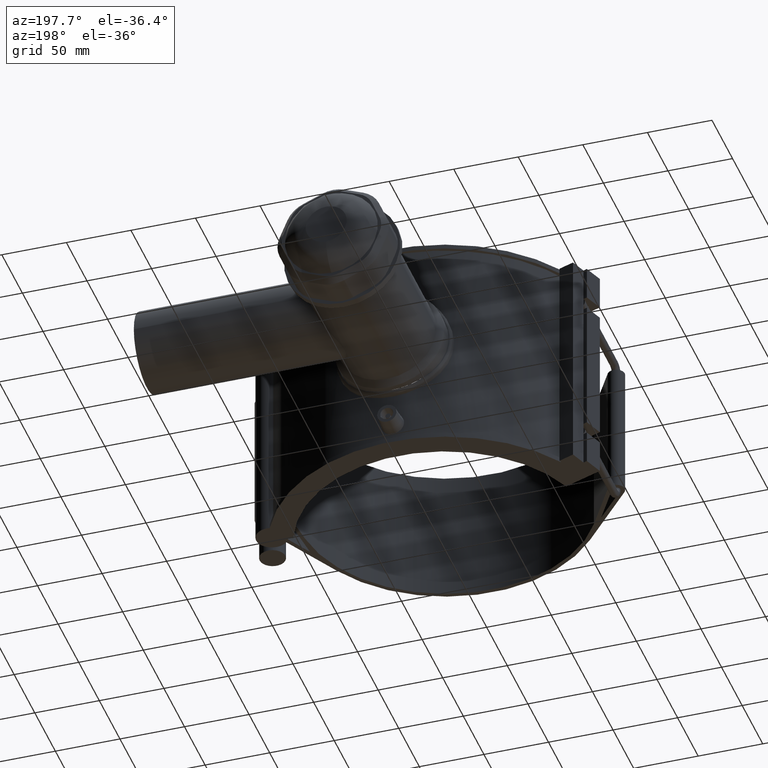
[diagram: clean part render]
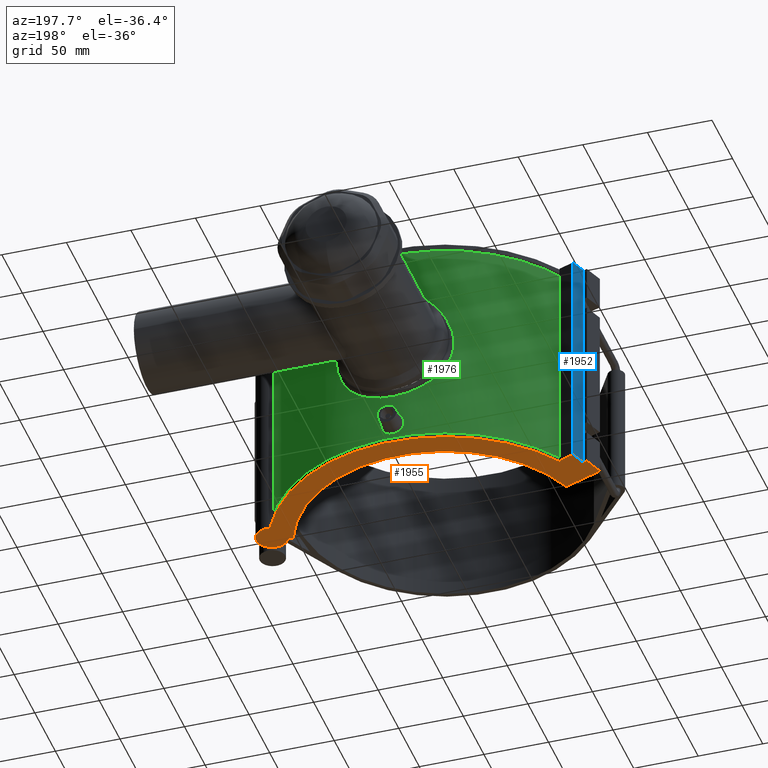
[diagram: same view with three faces highlighted in distinct colors, each labeled with its STEP entity id]
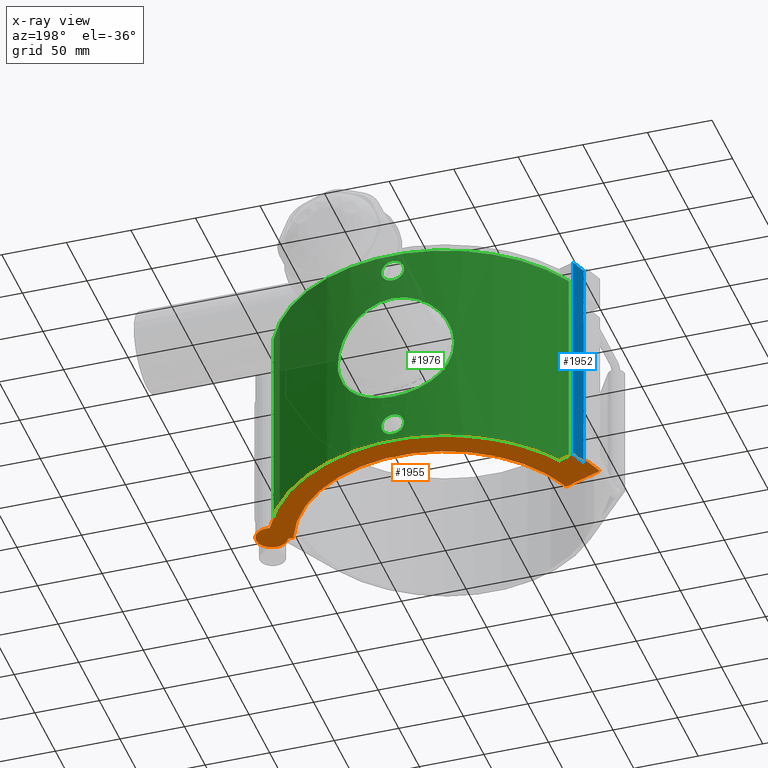
[diagram: x-ray of the same camera — body ghosted, the three highlighted faces saturated]
A machine part, auxiliary view with three faces highlighted in distinct colors.
The next image is the same camera in x-ray (body ghosted, the three faces saturated) — at least one of them is partly hidden behind the body in this view.
Their STEP definitions:

[orange] entity #1955 — the highlighted planar face has unit normal (0, 0, 1).
#137=LINE('',#3486,#298);
#153=LINE('',#3529,#314);
#157=LINE('',#3535,#318);
#168=LINE('',#3558,#329);
#177=LINE('',#3575,#338);
#179=LINE('',#3578,#340);
#181=LINE('',#3593,#342);
#298=VECTOR('',#2558,31.4999999999999);
#314=VECTOR('',#2602,3.15000000000004);
#318=VECTOR('',#2610,15.75);
#329=VECTOR('',#2627,2.57206903182394);
#338=VECTOR('',#2642,12.6);
#340=VECTOR('',#2646,12.6);
#342=VECTOR('',#2662,3.63461538461539);
#534=FACE_OUTER_BOUND('',#676,.T.);
#676=EDGE_LOOP('',(#1661,#1662,#1663,#1664,#1665,#1666,#1667,#1668,#1669,
#1670));
#796=CIRCLE('',#2149,130.815);
#797=CIRCLE('',#2150,12.1153846153846);
#798=CIRCLE('',#2151,112.5);
#941=VERTEX_POINT('',#3483);
#942=VERTEX_POINT('',#3485);
#954=VERTEX_POINT('',#3526);
#955=VERTEX_POINT('',#3528);
#963=VERTEX_POINT('',#3555);
#964=VERTEX_POINT('',#3557);
#969=VERTEX_POINT('',#3573);
#973=VERTEX_POINT('',#3588);
#974=VERTEX_POINT('',#3590);
#975=VERTEX_POINT('',#3592);
#1167=EDGE_CURVE('',#942,#941,#137,.T.);
#1189=EDGE_CURVE('',#955,#954,#153,.T.);
#1193=EDGE_CURVE('',#941,#955,#157,.T.);
#1204=EDGE_CURVE('',#964,#963,#168,.T.);
#1213=EDGE_CURVE('',#954,#969,#177,.T.);
#1215=EDGE_CURVE('',#969,#964,#179,.T.);
#1220=EDGE_CURVE('',#973,#963,#796,.T.);
#1221=EDGE_CURVE('',#973,#974,#797,.T.);
#1222=EDGE_CURVE('',#974,#975,#181,.T.);
#1223=EDGE_CURVE('',#975,#942,#798,.T.);
#1661=ORIENTED_EDGE('',*,*,#1167,.T.);
#1662=ORIENTED_EDGE('',*,*,#1193,.T.);
#1663=ORIENTED_EDGE('',*,*,#1189,.T.);
#1664=ORIENTED_EDGE('',*,*,#1213,.T.);
#1665=ORIENTED_EDGE('',*,*,#1215,.T.);
#1666=ORIENTED_EDGE('',*,*,#1204,.T.);
#1667=ORIENTED_EDGE('',*,*,#1220,.F.);
#1668=ORIENTED_EDGE('',*,*,#1221,.T.);
#1669=ORIENTED_EDGE('',*,*,#1222,.T.);
#1670=ORIENTED_EDGE('',*,*,#1223,.T.);
#1855=PLANE('',#2148);
#1955=ADVANCED_FACE('',(#534),#1855,.F.);
#2148=AXIS2_PLACEMENT_3D('',#3587,#2656,#2657);
#2149=AXIS2_PLACEMENT_3D('',#3589,#2658,#2659);
#2150=AXIS2_PLACEMENT_3D('',#3591,#2660,#2661);
#2151=AXIS2_PLACEMENT_3D('',#3594,#2663,#2664);
#2558=DIRECTION('',(-0.939692620785908,0.342020143325669,0.));
#2602=DIRECTION('',(0.939692620785908,-0.342020143325669,0.));
#2610=DIRECTION('',(0.342020143325668,0.939692620785909,0.));
#2627=DIRECTION('',(-0.342020143325672,-0.939692620785907,0.));
#2642=DIRECTION('',(0.342020143325669,0.939692620785908,0.));
#2646=DIRECTION('',(0.939692620785909,-0.342020143325668,0.));
#2656=DIRECTION('center_axis',(0.,0.,1.));
#2657=DIRECTION('ref_axis',(1.,0.,0.));
#2658=DIRECTION('center_axis',(0.,0.,1.));
#2659=DIRECTION('ref_axis',(0.976614427290077,0.21499828001376,0.));
#2660=DIRECTION('center_axis',(0.,0.,-1.));
#2661=DIRECTION('ref_axis',(-1.,0.,0.));
#2662=DIRECTION('',(-0.939692620785908,-0.342020143325669,0.));
#2663=DIRECTION('center_axis',(0.,0.,1.));
#2664=DIRECTION('ref_axis',(-1.,0.,0.));
#3483=CARTESIAN_POINT('',(-135.315737393171,49.2509006388962,-88.));
#3485=CARTESIAN_POINT('',(-105.715419838415,38.4772661241378,-88.));
#3486=CARTESIAN_POINT('',(-122.402768893554,44.5509644690188,-88.));
#3526=CARTESIAN_POINT('',(-126.968888380316,62.9736959647984,-88.));
#3528=CARTESIAN_POINT('',(-129.928920135791,64.0510594162743,-88.));
#3529=CARTESIAN_POINT('',(-129.928920135791,64.0510594162743,-88.));
#3535=CARTESIAN_POINT('',(-135.315737393171,49.2509006388962,-88.));
#3555=CARTESIAN_POINT('',(-111.699006971418,68.0874148914405,-88.));
#3557=CARTESIAN_POINT('',(-110.81930755251,70.5043691807975,-88.));
#3558=CARTESIAN_POINT('',(-110.81930755251,70.5043691807975,-88.));
#3573=CARTESIAN_POINT('',(-122.659434574412,74.8138229867009,-88.));
#3575=CARTESIAN_POINT('',(-126.968888380316,62.9736959647984,-88.));
#3578=CARTESIAN_POINT('',(-122.659434574412,74.8138229867009,-88.));
#3587=CARTESIAN_POINT('Origin',(-138.02557242982,1.02542712232171E-16,-88.));
#3588=CARTESIAN_POINT('',(118.326455748415,55.7800510489045,-88.));
#3589=CARTESIAN_POINT('Origin',(0.,0.,-88.));
#3590=CARTESIAN_POINT('',(109.130841094733,39.7203777989176,-88.));
#3591=CARTESIAN_POINT('Origin',(120.515578615793,43.864083381517,-88.));
#3592=CARTESIAN_POINT('',(105.715419838415,38.4772661241377,-88.));
#3593=CARTESIAN_POINT('',(-60.9398237995001,-22.1802819444451,-88.));
#3594=CARTESIAN_POINT('Origin',(0.,0.,-88.));

[blue] entity #1952 — the highlighted planar face has unit normal (-0.9397, 0.342, 0).
#116=LINE('',#3421,#277);
#117=LINE('',#3425,#278);
#127=LINE('',#3465,#288);
#128=LINE('',#3467,#289);
#130=LINE('',#3471,#291);
#148=LINE('',#3514,#309);
#152=LINE('',#3527,#313);
#155=LINE('',#3532,#316);
#174=LINE('',#3569,#335);
#175=LINE('',#3572,#336);
#176=LINE('',#3574,#337);
#177=LINE('',#3575,#338);
#277=VECTOR('',#2503,5.10345887572063);
#278=VECTOR('',#2506,5.10345887572067);
#288=VECTOR('',#2538,3.93327056213968);
#289=VECTOR('',#2541,0.413270562139685);
#291=VECTOR('',#2545,0.413270562139658);
#309=VECTOR('',#2585,3.93327056213968);
#313=VECTOR('',#2601,26.075);
#316=VECTOR('',#2606,104.95);
#335=VECTOR('',#2637,26.075);
#336=VECTOR('',#2640,12.6);
#337=VECTOR('',#2641,176.);
#338=VECTOR('',#2642,12.6);
#531=FACE_OUTER_BOUND('',#673,.T.);
#673=EDGE_LOOP('',(#1635,#1636,#1637,#1638,#1639,#1640,#1641,#1642,#1643,
#1644,#1645,#1646));
#920=VERTEX_POINT('',#3415);
#921=VERTEX_POINT('',#3417);
#922=VERTEX_POINT('',#3423);
#923=VERTEX_POINT('',#3424);
#931=VERTEX_POINT('',#3451);
#936=VERTEX_POINT('',#3463);
#937=VERTEX_POINT('',#3469);
#951=VERTEX_POINT('',#3510);
#954=VERTEX_POINT('',#3526);
#967=VERTEX_POINT('',#3567);
#968=VERTEX_POINT('',#3571);
#969=VERTEX_POINT('',#3573);
#1138=EDGE_CURVE('',#921,#920,#116,.T.);
#1139=EDGE_CURVE('',#922,#923,#117,.T.);
#1157=EDGE_CURVE('',#920,#936,#127,.T.);
#1158=EDGE_CURVE('',#931,#921,#128,.T.);
#1160=EDGE_CURVE('',#923,#937,#130,.T.);
#1182=EDGE_CURVE('',#951,#922,#148,.T.);
#1188=EDGE_CURVE('',#954,#931,#152,.T.);
#1191=EDGE_CURVE('',#936,#951,#155,.T.);
#1210=EDGE_CURVE('',#937,#967,#174,.T.);
#1211=EDGE_CURVE('',#967,#968,#175,.T.);
#1212=EDGE_CURVE('',#969,#968,#176,.T.);
#1213=EDGE_CURVE('',#954,#969,#177,.T.);
#1635=ORIENTED_EDGE('',*,*,#1211,.T.);
#1636=ORIENTED_EDGE('',*,*,#1212,.F.);
#1637=ORIENTED_EDGE('',*,*,#1213,.F.);
#1638=ORIENTED_EDGE('',*,*,#1188,.T.);
#1639=ORIENTED_EDGE('',*,*,#1158,.T.);
#1640=ORIENTED_EDGE('',*,*,#1138,.T.);
#1641=ORIENTED_EDGE('',*,*,#1157,.T.);
#1642=ORIENTED_EDGE('',*,*,#1191,.T.);
#1643=ORIENTED_EDGE('',*,*,#1182,.T.);
#1644=ORIENTED_EDGE('',*,*,#1139,.T.);
#1645=ORIENTED_EDGE('',*,*,#1160,.T.);
#1646=ORIENTED_EDGE('',*,*,#1210,.T.);
#1852=PLANE('',#2142);
#1952=ADVANCED_FACE('',(#531),#1852,.T.);
#2142=AXIS2_PLACEMENT_3D('',#3570,#2638,#2639);
#2503=DIRECTION('',(0.,0.,1.));
#2506=DIRECTION('',(0.,0.,1.));
#2538=DIRECTION('',(0.,0.,1.));
#2541=DIRECTION('',(0.,0.,1.));
#2545=DIRECTION('',(0.,0.,1.));
#2585=DIRECTION('',(0.,0.,1.));
#2601=DIRECTION('',(0.,0.,1.));
#2606=DIRECTION('',(0.,0.,1.));
#2637=DIRECTION('',(0.,0.,1.));
#2638=DIRECTION('center_axis',(-0.939692620785908,0.342020143325669,0.));
#2639=DIRECTION('ref_axis',(-0.342020143325669,-0.939692620785908,0.));
#2640=DIRECTION('',(0.342020143325669,0.939692620785908,0.));
#2641=DIRECTION('',(0.,0.,1.));
#2642=DIRECTION('',(0.342020143325669,0.939692620785908,0.));
#3415=CARTESIAN_POINT('',(-126.968888380316,62.9736959647984,-56.4082705621397));
#3417=CARTESIAN_POINT('',(-126.968888380316,62.9736959647984,-61.5117294378603));
#3421=CARTESIAN_POINT('',(-126.968888380316,62.9736959647984,-88.));
#3423=CARTESIAN_POINT('',(-126.968888380316,62.9736959647985,56.4082705621397));
#3424=CARTESIAN_POINT('',(-126.968888380316,62.9736959647985,61.5117294378603));
#3425=CARTESIAN_POINT('',(-126.968888380316,62.9736959647984,-88.));
#3451=CARTESIAN_POINT('',(-126.968888380316,62.9736959647984,-61.925));
#3463=CARTESIAN_POINT('',(-126.968888380316,62.9736959647984,-52.475));
#3465=CARTESIAN_POINT('',(-126.968888380316,62.9736959647984,-88.));
#3467=CARTESIAN_POINT('',(-126.968888380316,62.9736959647984,-88.));
#3469=CARTESIAN_POINT('',(-126.968888380316,62.9736959647985,61.925));
#3471=CARTESIAN_POINT('',(-126.968888380316,62.9736959647984,-88.));
#3510=CARTESIAN_POINT('',(-126.968888380316,62.9736959647985,52.475));
#3514=CARTESIAN_POINT('',(-126.968888380316,62.9736959647984,-88.));
#3526=CARTESIAN_POINT('',(-126.968888380316,62.9736959647984,-88.));
#3527=CARTESIAN_POINT('',(-126.968888380316,62.9736959647984,-88.));
#3532=CARTESIAN_POINT('',(-126.968888380316,62.9736959647984,-88.));
#3567=CARTESIAN_POINT('',(-126.968888380316,62.9736959647984,88.));
#3569=CARTESIAN_POINT('',(-126.968888380316,62.9736959647984,-88.));
#3570=CARTESIAN_POINT('Origin',(-122.659434574412,74.8138229867009,-88.));
#3571=CARTESIAN_POINT('',(-122.659434574412,74.8138229867009,88.));
#3572=CARTESIAN_POINT('',(-125.296094408077,67.5696596309246,88.));
#3573=CARTESIAN_POINT('',(-122.659434574412,74.8138229867009,-88.));
#3574=CARTESIAN_POINT('',(-122.659434574412,74.8138229867009,-88.));
#3575=CARTESIAN_POINT('',(-126.968888380316,62.9736959647984,-88.));

[green] entity #1976 — the highlighted cylindrical surface (partial cylindrical patch) has radius 128.25 mm, axis along (0, 0, 1).
#159=LINE('',#3542,#320);
#197=LINE('',#3635,#358);
#320=VECTOR('',#2616,168.96);
#358=VECTOR('',#2720,168.96);
#385=FACE_BOUND('',#701,.T.);
#386=FACE_BOUND('',#702,.T.);
#387=FACE_BOUND('',#703,.T.);
#410=B_SPLINE_CURVE_WITH_KNOTS('',3,(#3648,#3649,#3650,#3651,#3652,#3653,
#3654,#3655,#3656,#3657,#3658,#3659,#3660,#3661,#3662,#3663,#3664,#3665,
#3666,#3667,#3668,#3669,#3670,#3671,#3672,#3673,#3674,#3675,#3676,#3677,
#3678,#3679,#3680,#3681,#3682,#3683,#3684,#3685,#3686,#3687,#3688,#3689,
#3690,#3691,#3692,#3693,#3694,#3695,#3696,#3697,#3698,#3699,#3700,#3701,
#3702,#3703,#3704,#3705,#3706,#3707,#3708,#3709,#3710,#3711,#3712,#3713),
 .UNSPECIFIED.,.T.,.F.,(4,2,2,2,2,2,2,2,2,2,2,2,2,2,2,2,2,2,2,2,2,2,2,2,
2,2,2,2,2,2,2,2,4),(0.,0.855728946250435,1.71145789250087,2.56718683875131,
3.42291578500174,4.27815145924942,5.1333871334971,5.98862280774479,6.84385848199247,
7.69909415624015,8.55432983048783,9.40956550473551,10.2648011789832,11.1205301252336,
11.9762590714841,12.8319880177345,13.6877169639849,14.5434459102354,15.3991748564858,
16.2549038027362,17.1106327489867,17.9658684232344,18.821104097482,19.6763397717297,
20.5315754459774,21.3868111202251,22.2420467944728,23.0972824687205,23.9525181429681,
24.8082470892186,25.663976035469,26.5197049817194,27.3754339279699),
 .UNSPECIFIED.);
#411=B_SPLINE_CURVE_WITH_KNOTS('',3,(#3715,#3716,#3717,#3718,#3719,#3720,
#3721,#3722,#3723,#3724,#3725,#3726,#3727,#3728,#3729,#3730,#3731,#3732,
#3733,#3734,#3735,#3736,#3737,#3738,#3739,#3740,#3741,#3742,#3743,#3744,
#3745,#3746,#3747,#3748),.UNSPECIFIED.,.T.,.F.,(4,2,2,2,2,2,2,2,2,2,2,2,
2,2,2,2,4),(0.,0.330196286126767,0.660392572253533,0.990362194504793,1.32033181675605,
1.65030143900731,1.98027106125857,2.31046734738534,2.64066363351211,2.97085991963887,
3.30105620576564,3.6310258280169,3.96099545026816,4.29096507251942,4.62093469477068,
4.95113098089744,5.28132726702421),.UNSPECIFIED.);
#412=B_SPLINE_CURVE_WITH_KNOTS('',3,(#3750,#3751,#3752,#3753,#3754,#3755,
#3756,#3757,#3758,#3759,#3760,#3761,#3762,#3763,#3764,#3765,#3766,#3767,
#3768,#3769,#3770,#3771,#3772,#3773,#3774,#3775,#3776,#3777,#3778,#3779,
#3780,#3781,#3782,#3783),.UNSPECIFIED.,.T.,.F.,(4,2,2,2,2,2,2,2,2,2,2,2,
2,2,2,2,4),(0.,0.330196286126767,0.660392572253533,0.990362194504793,1.32033181675605,
1.65030143900731,1.98027106125857,2.31046734738534,2.64066363351211,2.97085991963887,
3.30105620576564,3.6310258280169,3.96099545026816,4.29096507251942,4.62093469477068,
4.95113098089744,5.28132726702421),.UNSPECIFIED.);
#444=CYLINDRICAL_SURFACE('',#2178,128.25);
#555=FACE_OUTER_BOUND('',#700,.T.);
#700=EDGE_LOOP('',(#1754,#1755,#1756,#1757));
#701=EDGE_LOOP('',(#1758));
#702=EDGE_LOOP('',(#1759));
#703=EDGE_LOOP('',(#1760));
#804=CIRCLE('',#2177,128.25);
#805=CIRCLE('',#2179,128.25);
#956=VERTEX_POINT('',#3538);
#958=VERTEX_POINT('',#3541);
#979=VERTEX_POINT('',#3632);
#980=VERTEX_POINT('',#3634);
#982=VERTEX_POINT('',#3647);
#983=VERTEX_POINT('',#3714);
#984=VERTEX_POINT('',#3749);
#1195=EDGE_CURVE('',#958,#956,#159,.T.);
#1242=EDGE_CURVE('',#980,#979,#197,.T.);
#1247=EDGE_CURVE('',#956,#980,#804,.T.);
#1248=EDGE_CURVE('',#979,#958,#805,.T.);
#1249=EDGE_CURVE('',#982,#982,#410,.T.);
#1250=EDGE_CURVE('',#983,#983,#411,.T.);
#1251=EDGE_CURVE('',#984,#984,#412,.T.);
#1754=ORIENTED_EDGE('',*,*,#1195,.T.);
#1755=ORIENTED_EDGE('',*,*,#1247,.T.);
#1756=ORIENTED_EDGE('',*,*,#1242,.T.);
#1757=ORIENTED_EDGE('',*,*,#1248,.T.);
#1758=ORIENTED_EDGE('',*,*,#1249,.T.);
#1759=ORIENTED_EDGE('',*,*,#1250,.T.);
#1760=ORIENTED_EDGE('',*,*,#1251,.T.);
#1976=ADVANCED_FACE('',(#555,#385,#386,#387),#444,.T.);
#2177=AXIS2_PLACEMENT_3D('',#3644,#2733,#2734);
#2178=AXIS2_PLACEMENT_3D('',#3645,#2735,#2736);
#2179=AXIS2_PLACEMENT_3D('',#3646,#2737,#2738);
#2616=DIRECTION('',(0.,0.,1.));
#2720=DIRECTION('',(0.,0.,-1.));
#2733=DIRECTION('center_axis',(0.,0.,-1.));
#2734=DIRECTION('ref_axis',(1.,0.,0.));
#2735=DIRECTION('center_axis',(0.,0.,1.));
#2736=DIRECTION('ref_axis',(1.,0.,0.));
#2737=DIRECTION('center_axis',(0.,0.,1.));
#2738=DIRECTION('ref_axis',(1.,0.,0.));
#3538=CARTESIAN_POINT('',(-114.216527132582,58.3322160540136,84.48));
#3541=CARTESIAN_POINT('',(-114.216527132582,58.3322160540136,-84.48));
#3542=CARTESIAN_POINT('',(-114.216527132582,58.3322160540136,0.));
#3632=CARTESIAN_POINT('',(115.838757280186,55.0403925474944,-84.48));
#3634=CARTESIAN_POINT('',(115.838757280186,55.0403925474944,84.48));
#3635=CARTESIAN_POINT('',(115.838757280186,55.0403925474943,0.));
#3644=CARTESIAN_POINT('Origin',(0.,0.,84.48));
#3645=CARTESIAN_POINT('Origin',(0.,0.,0.));
#3646=CARTESIAN_POINT('Origin',(0.,0.,-84.48));
#3647=CARTESIAN_POINT('',(45.,120.096055305743,0.));
#3648=CARTESIAN_POINT('Ctrl Pts',(45.,120.096055305743,1.11022302462516E-15));
#3649=CARTESIAN_POINT('Ctrl Pts',(45.,120.096055305743,2.85242982083479));
#3650=CARTESIAN_POINT('Ctrl Pts',(44.724428450353,120.200514769227,5.79357665491238));
#3651=CARTESIAN_POINT('Ctrl Pts',(43.5733880070998,120.622543945769,11.6275487061537));
#3652=CARTESIAN_POINT('Ctrl Pts',(42.6982619080095,120.939665787067,14.520473941499));
#3653=CARTESIAN_POINT('Ctrl Pts',(40.3950033797142,121.728336355425,20.0556632606961));
#3654=CARTESIAN_POINT('Ctrl Pts',(38.9650444193638,122.199645347404,22.7027991987814));
#3655=CARTESIAN_POINT('Ctrl Pts',(35.6699383820364,123.201799925917,27.5925220770062));
#3656=CARTESIAN_POINT('Ctrl Pts',(33.8044936485425,123.731629249055,29.8351166582468));
#3657=CARTESIAN_POINT('Ctrl Pts',(29.8362607018989,124.747956204361,33.8033496048904));
#3658=CARTESIAN_POINT('Ctrl Pts',(27.5942096504032,125.27106308028,35.6686546168075));
#3659=CARTESIAN_POINT('Ctrl Pts',(22.7041865402505,126.248958668781,38.9642559565315));
#3660=CARTESIAN_POINT('Ctrl Pts',(20.0562058908857,126.702869747262,40.3947998925188));
#3661=CARTESIAN_POINT('Ctrl Pts',(14.5193267893956,127.456101252927,42.6987169416773));
#3662=CARTESIAN_POINT('Ctrl Pts',(11.6255815568741,127.755459103685,43.5739199645984));
#3663=CARTESIAN_POINT('Ctrl Pts',(5.79135139277384,128.152533047064,44.7247235506191));
#3664=CARTESIAN_POINT('Ctrl Pts',(2.85078558082561,128.25,45.));
#3665=CARTESIAN_POINT('Ctrl Pts',(-2.8507855808256,128.25,45.));
#3666=CARTESIAN_POINT('Ctrl Pts',(-5.79135139277383,128.152533047064,44.7247235506191));
#3667=CARTESIAN_POINT('Ctrl Pts',(-11.6255815568741,127.755459103685,43.5739199645984));
#3668=CARTESIAN_POINT('Ctrl Pts',(-14.5193267893956,127.456101252927,42.6987169416773));
#3669=CARTESIAN_POINT('Ctrl Pts',(-20.0562058908857,126.702869747262,40.3947998925188));
#3670=CARTESIAN_POINT('Ctrl Pts',(-22.7041865402505,126.248958668781,38.9642559565315));
#3671=CARTESIAN_POINT('Ctrl Pts',(-27.5942096504032,125.27106308028,35.6686546168076));
#3672=CARTESIAN_POINT('Ctrl Pts',(-29.8362607018989,124.747956204361,33.8033496048904));
#3673=CARTESIAN_POINT('Ctrl Pts',(-33.8044936485425,123.731629249055,29.8351166582468));
#3674=CARTESIAN_POINT('Ctrl Pts',(-35.6699383820364,123.201799925917,27.5925220770062));
#3675=CARTESIAN_POINT('Ctrl Pts',(-38.9650444193638,122.199645347404,22.7027991987814));
#3676=CARTESIAN_POINT('Ctrl Pts',(-40.3950033797142,121.728336355425,20.0556632606961));
#3677=CARTESIAN_POINT('Ctrl Pts',(-42.6982619080095,120.939665787067,14.520473941499));
#3678=CARTESIAN_POINT('Ctrl Pts',(-43.5733880070998,120.622543945769,11.6275487061537));
#3679=CARTESIAN_POINT('Ctrl Pts',(-44.724428450353,120.200514769227,5.79357665491237));
#3680=CARTESIAN_POINT('Ctrl Pts',(-45.,120.096055305743,2.85242982083478));
#3681=CARTESIAN_POINT('Ctrl Pts',(-45.,120.096055305743,-2.85242982083478));
#3682=CARTESIAN_POINT('Ctrl Pts',(-44.724428450353,120.200514769227,-5.79357665491238));
#3683=CARTESIAN_POINT('Ctrl Pts',(-43.5733880070998,120.622543945769,-11.6275487061537));
#3684=CARTESIAN_POINT('Ctrl Pts',(-42.6982619080095,120.939665787067,-14.520473941499));
#3685=CARTESIAN_POINT('Ctrl Pts',(-40.3950033797142,121.728336355425,-20.0556632606961));
#3686=CARTESIAN_POINT('Ctrl Pts',(-38.9650444193638,122.199645347404,-22.7027991987815));
#3687=CARTESIAN_POINT('Ctrl Pts',(-35.6699383820364,123.201799925917,-27.5925220770062));
#3688=CARTESIAN_POINT('Ctrl Pts',(-33.8044936485425,123.731629249055,-29.8351166582468));
#3689=CARTESIAN_POINT('Ctrl Pts',(-29.8362607018989,124.747956204361,-33.8033496048904));
#3690=CARTESIAN_POINT('Ctrl Pts',(-27.5942096504032,125.27106308028,-35.6686546168076));
#3691=CARTESIAN_POINT('Ctrl Pts',(-22.7041865402505,126.248958668781,-38.9642559565316));
#3692=CARTESIAN_POINT('Ctrl Pts',(-20.0562058908857,126.702869747262,-40.3947998925188));
#3693=CARTESIAN_POINT('Ctrl Pts',(-14.5193267893956,127.456101252927,-42.6987169416773));
#3694=CARTESIAN_POINT('Ctrl Pts',(-11.6255815568741,127.755459103685,-43.5739199645984));
#3695=CARTESIAN_POINT('Ctrl Pts',(-5.79135139277384,128.152533047064,-44.7247235506191));
#3696=CARTESIAN_POINT('Ctrl Pts',(-2.85078558082561,128.25,-45.));
#3697=CARTESIAN_POINT('Ctrl Pts',(2.85078558082559,128.25,-45.));
#3698=CARTESIAN_POINT('Ctrl Pts',(5.79135139277381,128.152533047064,-44.7247235506191));
#3699=CARTESIAN_POINT('Ctrl Pts',(11.6255815568741,127.755459103685,-43.5739199645984));
#3700=CARTESIAN_POINT('Ctrl Pts',(14.5193267893956,127.456101252927,-42.6987169416773));
#3701=CARTESIAN_POINT('Ctrl Pts',(20.0562058908857,126.702869747262,-40.3947998925188));
#3702=CARTESIAN_POINT('Ctrl Pts',(22.7041865402505,126.248958668781,-38.9642559565315));
#3703=CARTESIAN_POINT('Ctrl Pts',(27.5942096504032,125.27106308028,-35.6686546168075));
#3704=CARTESIAN_POINT('Ctrl Pts',(29.8362607018989,124.747956204361,-33.8033496048904));
#3705=CARTESIAN_POINT('Ctrl Pts',(33.8044936485425,123.731629249055,-29.8351166582468));
#3706=CARTESIAN_POINT('Ctrl Pts',(35.6699383820364,123.201799925917,-27.5925220770062));
#3707=CARTESIAN_POINT('Ctrl Pts',(38.9650444193638,122.199645347404,-22.7027991987814));
#3708=CARTESIAN_POINT('Ctrl Pts',(40.3950033797142,121.728336355425,-20.0556632606961));
#3709=CARTESIAN_POINT('Ctrl Pts',(42.6982619080095,120.939665787067,-14.520473941499));
#3710=CARTESIAN_POINT('Ctrl Pts',(43.5733880070998,120.622543945769,-11.6275487061537));
#3711=CARTESIAN_POINT('Ctrl Pts',(44.724428450353,120.200514769227,-5.79357665491239));
#3712=CARTESIAN_POINT('Ctrl Pts',(45.,120.096055305743,-2.85242982083479));
#3713=CARTESIAN_POINT('Ctrl Pts',(45.,120.096055305743,1.11022302462516E-15));
#3714=CARTESIAN_POINT('',(8.77299610992734,127.949587882319,-70.4));
#3715=CARTESIAN_POINT('Ctrl Pts',(8.77299610992734,127.949587882319,-70.4));
#3716=CARTESIAN_POINT('Ctrl Pts',(8.77299610992734,127.949587882319,-69.2993457129108));
#3717=CARTESIAN_POINT('Ctrl Pts',(8.55187424562502,127.96534787823,-68.1259527139558));
#3718=CARTESIAN_POINT('Ctrl Pts',(7.6540934223627,128.022184263365,-65.9690307106768));
#3719=CARTESIAN_POINT('Ctrl Pts',(6.97747344776285,128.062432873762,-64.9854637470189));
#3720=CARTESIAN_POINT('Ctrl Pts',(5.41861622576006,128.137853935393,-63.4341064530373));
#3721=CARTESIAN_POINT('Ctrl Pts',(4.43260654007097,128.177927088609,-62.7625109612075));
#3722=CARTESIAN_POINT('Ctrl Pts',(2.27325837545014,128.234399790843,-61.8721006131769));
#3723=CARTESIAN_POINT('Ctrl Pts',(1.09989874083753,128.25,-61.6532865447556));
#3724=CARTESIAN_POINT('Ctrl Pts',(-1.09989874083753,128.25,-61.6532865447556));
#3725=CARTESIAN_POINT('Ctrl Pts',(-2.27325837545014,128.234399790843,-61.8721006131769));
#3726=CARTESIAN_POINT('Ctrl Pts',(-4.43260654007097,128.177927088609,-62.7625109612075));
#3727=CARTESIAN_POINT('Ctrl Pts',(-5.41861622576006,128.137853935393,-63.4341064530373));
#3728=CARTESIAN_POINT('Ctrl Pts',(-6.97747344776285,128.062432873762,-64.9854637470189));
#3729=CARTESIAN_POINT('Ctrl Pts',(-7.6540934223627,128.022184263365,-65.9690307106768));
#3730=CARTESIAN_POINT('Ctrl Pts',(-8.55187424562502,127.96534787823,-68.1259527139558));
#3731=CARTESIAN_POINT('Ctrl Pts',(-8.77299610992734,127.949587882319,-69.2993457129108));
#3732=CARTESIAN_POINT('Ctrl Pts',(-8.77299610992734,127.949587882319,-71.5006542870892));
#3733=CARTESIAN_POINT('Ctrl Pts',(-8.55187424562502,127.96534787823,-72.6740472860442));
#3734=CARTESIAN_POINT('Ctrl Pts',(-7.6540934223627,128.022184263365,-74.8309692893232));
#3735=CARTESIAN_POINT('Ctrl Pts',(-6.97747344776285,128.062432873762,-75.8145362529812));
#3736=CARTESIAN_POINT('Ctrl Pts',(-5.41861622576006,128.137853935393,-77.3658935469627));
#3737=CARTESIAN_POINT('Ctrl Pts',(-4.43260654007097,128.177927088609,-78.0374890387926));
#3738=CARTESIAN_POINT('Ctrl Pts',(-2.27325837545015,128.234399790843,-78.9278993868231));
#3739=CARTESIAN_POINT('Ctrl Pts',(-1.09989874083753,128.25,-79.1467134552444));
#3740=CARTESIAN_POINT('Ctrl Pts',(1.09989874083753,128.25,-79.1467134552444));
#3741=CARTESIAN_POINT('Ctrl Pts',(2.27325837545014,128.234399790843,-78.9278993868231));
#3742=CARTESIAN_POINT('Ctrl Pts',(4.43260654007097,128.177927088609,-78.0374890387926));
#3743=CARTESIAN_POINT('Ctrl Pts',(5.41861622576006,128.137853935393,-77.3658935469627));
#3744=CARTESIAN_POINT('Ctrl Pts',(6.97747344776284,128.062432873762,-75.8145362529812));
#3745=CARTESIAN_POINT('Ctrl Pts',(7.6540934223627,128.022184263365,-74.8309692893232));
#3746=CARTESIAN_POINT('Ctrl Pts',(8.55187424562502,127.96534787823,-72.6740472860442));
#3747=CARTESIAN_POINT('Ctrl Pts',(8.77299610992734,127.949587882319,-71.5006542870892));
#3748=CARTESIAN_POINT('Ctrl Pts',(8.77299610992734,127.949587882319,-70.4));
#3749=CARTESIAN_POINT('',(8.77299610992734,127.949587882319,70.4));
#3750=CARTESIAN_POINT('Ctrl Pts',(-8.77299610992734,127.949587882319,70.4));
#3751=CARTESIAN_POINT('Ctrl Pts',(-8.77299610992734,127.949587882319,69.2993457129108));
#3752=CARTESIAN_POINT('Ctrl Pts',(-8.55187424562502,127.96534787823,68.1259527139558));
#3753=CARTESIAN_POINT('Ctrl Pts',(-7.6540934223627,128.022184263365,65.9690307106768));
#3754=CARTESIAN_POINT('Ctrl Pts',(-6.97747344776285,128.062432873762,64.9854637470189));
#3755=CARTESIAN_POINT('Ctrl Pts',(-5.41861622576006,128.137853935393,63.4341064530373));
#3756=CARTESIAN_POINT('Ctrl Pts',(-4.43260654007097,128.177927088609,62.7625109612075));
#3757=CARTESIAN_POINT('Ctrl Pts',(-2.27325837545014,128.234399790843,61.8721006131769));
#3758=CARTESIAN_POINT('Ctrl Pts',(-1.09989874083753,128.25,61.6532865447556));
#3759=CARTESIAN_POINT('Ctrl Pts',(1.09989874083753,128.25,61.6532865447556));
#3760=CARTESIAN_POINT('Ctrl Pts',(2.27325837545014,128.234399790843,61.8721006131769));
#3761=CARTESIAN_POINT('Ctrl Pts',(4.43260654007097,128.177927088609,62.7625109612075));
#3762=CARTESIAN_POINT('Ctrl Pts',(5.41861622576006,128.137853935393,63.4341064530373));
#3763=CARTESIAN_POINT('Ctrl Pts',(6.97747344776285,128.062432873762,64.9854637470189));
#3764=CARTESIAN_POINT('Ctrl Pts',(7.6540934223627,128.022184263365,65.9690307106768));
#3765=CARTESIAN_POINT('Ctrl Pts',(8.55187424562502,127.96534787823,68.1259527139558));
#3766=CARTESIAN_POINT('Ctrl Pts',(8.77299610992734,127.949587882319,69.2993457129108));
#3767=CARTESIAN_POINT('Ctrl Pts',(8.77299610992734,127.949587882319,71.5006542870892));
#3768=CARTESIAN_POINT('Ctrl Pts',(8.55187424562502,127.96534787823,72.6740472860442));
#3769=CARTESIAN_POINT('Ctrl Pts',(7.6540934223627,128.022184263365,74.8309692893232));
#3770=CARTESIAN_POINT('Ctrl Pts',(6.97747344776285,128.062432873762,75.8145362529812));
#3771=CARTESIAN_POINT('Ctrl Pts',(5.41861622576006,128.137853935393,77.3658935469627));
#3772=CARTESIAN_POINT('Ctrl Pts',(4.43260654007097,128.177927088609,78.0374890387926));
#3773=CARTESIAN_POINT('Ctrl Pts',(2.27325837545015,128.234399790843,78.9278993868231));
#3774=CARTESIAN_POINT('Ctrl Pts',(1.09989874083753,128.25,79.1467134552444));
#3775=CARTESIAN_POINT('Ctrl Pts',(-1.09989874083753,128.25,79.1467134552444));
#3776=CARTESIAN_POINT('Ctrl Pts',(-2.27325837545014,128.234399790843,78.9278993868231));
#3777=CARTESIAN_POINT('Ctrl Pts',(-4.43260654007097,128.177927088609,78.0374890387926));
#3778=CARTESIAN_POINT('Ctrl Pts',(-5.41861622576006,128.137853935393,77.3658935469627));
#3779=CARTESIAN_POINT('Ctrl Pts',(-6.97747344776285,128.062432873762,75.8145362529812));
#3780=CARTESIAN_POINT('Ctrl Pts',(-7.6540934223627,128.022184263365,74.8309692893232));
#3781=CARTESIAN_POINT('Ctrl Pts',(-8.55187424562502,127.96534787823,72.6740472860442));
#3782=CARTESIAN_POINT('Ctrl Pts',(-8.77299610992734,127.949587882319,71.5006542870892));
#3783=CARTESIAN_POINT('Ctrl Pts',(-8.77299610992734,127.949587882319,70.4));